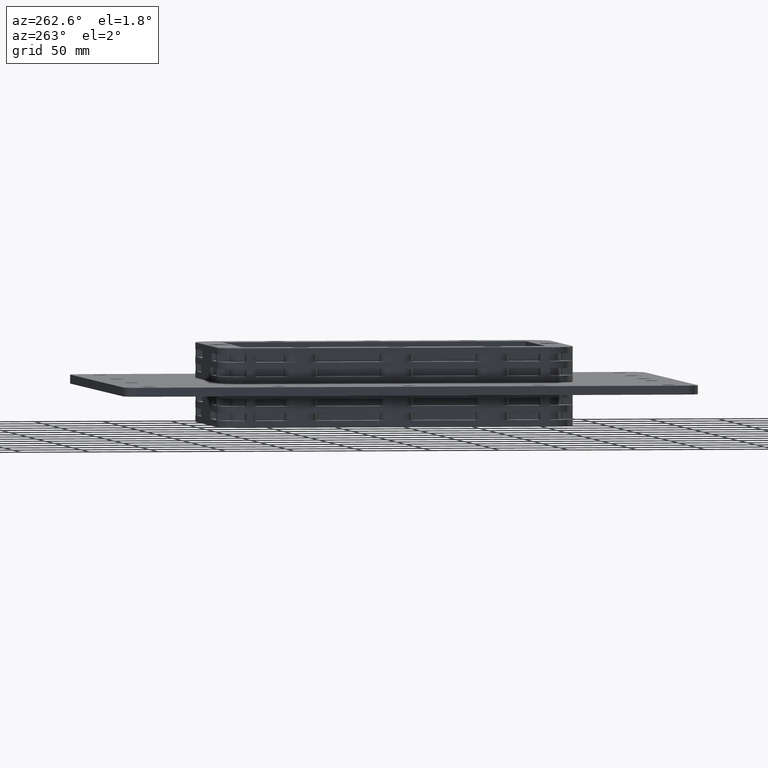
[diagram: clean part render]
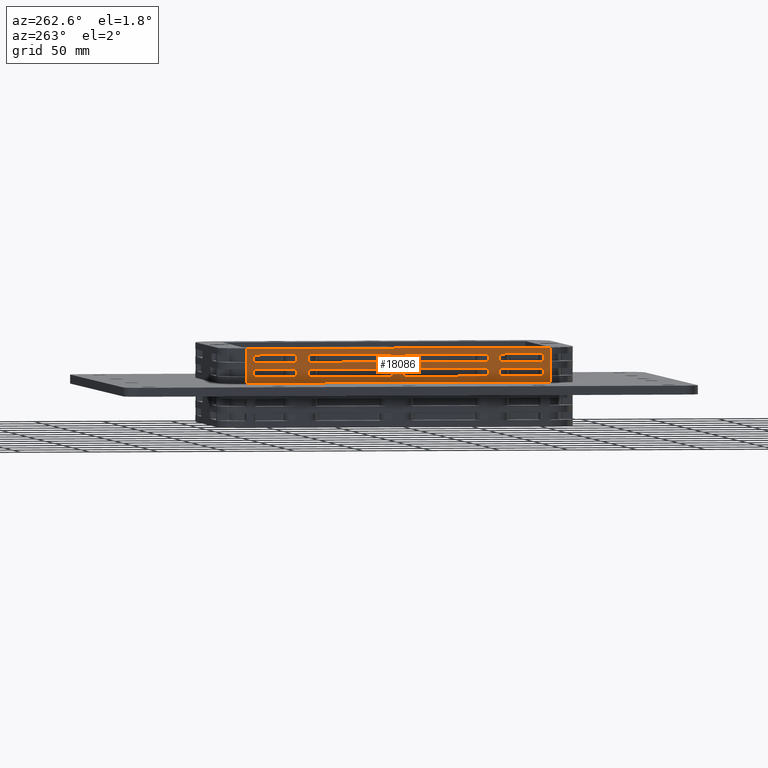
[diagram: same view with one face highlighted and labeled with its STEP entity id]
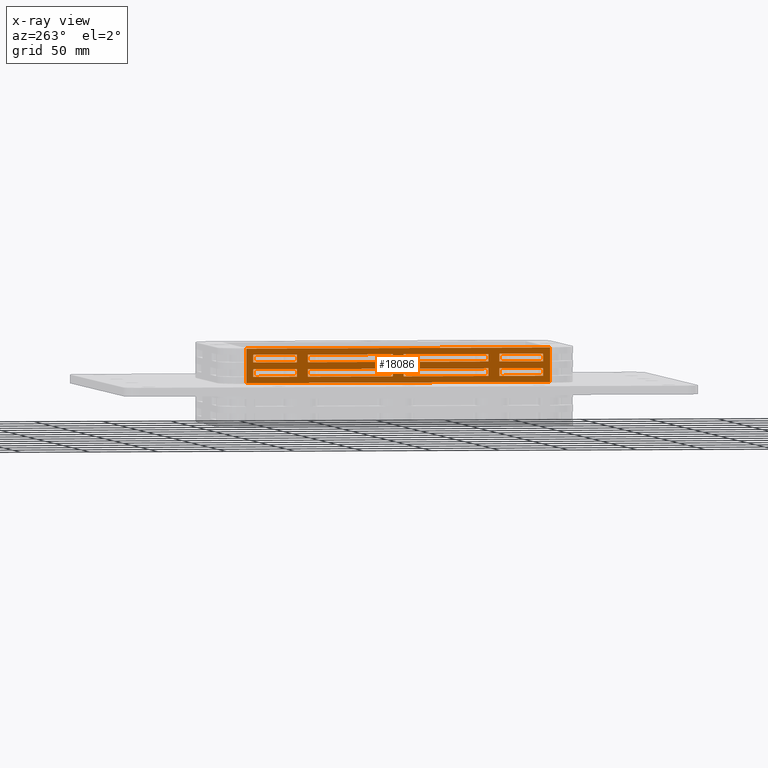
[diagram: x-ray of the same camera — body ghosted, the highlighted face saturated]
A machine part, auxiliary view. The second image highlights one B-rep face of the part: STEP entity #18086.
The next image is the same camera in x-ray: the body ghosted, the highlighted face saturated — about 0% of this face is hidden behind the body in this view.
In plain terms, the highlighted planar face has unit normal (-1, 0, 0).
Its self-contained STEP definition (entity closure, byte-faithful):
#98=CARTESIAN_POINT('',(189.310808067202600,279.936636017474310,2.395023394076706));
#99=VERTEX_POINT('',#98);
#107=CARTESIAN_POINT('',(189.310808067202600,279.936636017474310,7.395023394076707));
#108=VERTEX_POINT('',#107);
#109=CARTESIAN_POINT('',(189.310808067202600,279.936636017474310,2.395023394076706));
#110=DIRECTION('',(0.0,0.0,1.0));
#111=VECTOR('',#110,5.000000000000002);
#112=LINE('',#109,#111);
#113=EDGE_CURVE('',#99,#108,#112,.T.);
#350=CARTESIAN_POINT('',(189.310808067202600,279.936636017474310,12.895023394076706));
#351=VERTEX_POINT('',#350);
#359=CARTESIAN_POINT('',(189.310808067202600,279.936636017474310,17.395023394076709));
#360=VERTEX_POINT('',#359);
#361=CARTESIAN_POINT('',(189.310808067202600,279.936636017474310,12.895023394076706));
#362=DIRECTION('',(0.0,0.0,1.0));
#363=VECTOR('',#362,4.500000000000004);
#364=LINE('',#361,#363);
#365=EDGE_CURVE('',#351,#360,#364,.T.);
#3068=CARTESIAN_POINT('',(189.310808067202600,279.936636017474310,-7.604976605923297));
#3069=VERTEX_POINT('',#3068);
#3077=CARTESIAN_POINT('',(189.310808067202600,279.936636017474310,-3.104976605923293));
#3078=VERTEX_POINT('',#3077);
#3079=CARTESIAN_POINT('',(189.310808067202600,279.936636017474310,-7.604976605923297));
#3080=DIRECTION('',(0.0,0.0,1.0));
#3081=VECTOR('',#3080,4.500000000000004);
#3082=LINE('',#3079,#3081);
#3083=EDGE_CURVE('',#3069,#3078,#3082,.T.);
#16766=CARTESIAN_POINT('',(189.310808067202600,279.936636017474310,-3.104976605923293));
#16767=DIRECTION('',(0.0,0.0,1.0));
#16768=VECTOR('',#16767,5.499999999999998);
#16769=LINE('',#16766,#16768);
#16770=EDGE_CURVE('',#3078,#99,#16769,.T.);
#17053=CARTESIAN_POINT('',(189.310808067202600,57.936636017474292,7.395023394076707));
#17054=VERTEX_POINT('',#17053);
#17100=CARTESIAN_POINT('',(189.310808067202600,57.936636017474292,12.895023394076706));
#17101=VERTEX_POINT('',#17100);
#17108=CARTESIAN_POINT('',(189.310808067202600,57.936636017474292,12.895023394076706));
#17109=DIRECTION('',(0.0,0.0,-1.0));
#17110=VECTOR('',#17109,5.499999999999998);
#17111=LINE('',#17108,#17110);
#17112=EDGE_CURVE('',#17101,#17054,#17111,.T.);
#17158=CARTESIAN_POINT('',(189.310808067202600,57.936636017474292,-3.104976605923295));
#17159=VERTEX_POINT('',#17158);
#17205=CARTESIAN_POINT('',(189.310808067202600,57.936636017474292,2.395023394076706));
#17206=VERTEX_POINT('',#17205);
#17213=CARTESIAN_POINT('',(189.310808067202600,57.936636017474292,2.395023394076706));
#17214=DIRECTION('',(0.0,0.0,-1.0));
#17215=VECTOR('',#17214,5.500000000000000);
#17216=LINE('',#17213,#17215);
#17217=EDGE_CURVE('',#17206,#17159,#17216,.T.);
#17566=CARTESIAN_POINT('',(189.310808067202600,57.936636017474292,-7.604976605923297));
#17567=VERTEX_POINT('',#17566);
#17575=CARTESIAN_POINT('',(189.310808067202600,57.936636017474292,-7.604976605923297));
#17576=DIRECTION('',(0.0,1.0,0.0));
#17577=VECTOR('',#17576,222.000000000000030);
#17578=LINE('',#17575,#17577);
#17579=EDGE_CURVE('',#17567,#3069,#17578,.T.);
#17768=CARTESIAN_POINT('',(189.310808067202600,38.936636017474306,-8.104976605923294));
#17769=DIRECTION('',(-1.0,0.0,0.0));
#17770=DIRECTION('',(0.0,0.0,1.0));
#17771=AXIS2_PLACEMENT_3D('',#17768,#17769,#17770);
#17772=PLANE('',#17771);
#17773=ORIENTED_EDGE('',*,*,#17579,.F.);
#17774=CARTESIAN_POINT('',(189.310808067202600,57.936636017474292,-3.104976605923295));
#17775=DIRECTION('',(0.0,0.0,-1.0));
#17776=VECTOR('',#17775,4.500000000000002);
#17777=LINE('',#17774,#17776);
#17778=EDGE_CURVE('',#17159,#17567,#17777,.T.);
#17779=ORIENTED_EDGE('',*,*,#17778,.F.);
#17780=ORIENTED_EDGE('',*,*,#17217,.F.);
#17781=CARTESIAN_POINT('',(189.310808067202600,57.936636017474292,7.395023394076707));
#17782=DIRECTION('',(0.0,0.0,-1.0));
#17783=VECTOR('',#17782,5.000000000000002);
#17784=LINE('',#17781,#17783);
#17785=EDGE_CURVE('',#17054,#17206,#17784,.T.);
#17786=ORIENTED_EDGE('',*,*,#17785,.F.);
#17787=ORIENTED_EDGE('',*,*,#17112,.F.);
#17788=CARTESIAN_POINT('',(189.310808067202600,57.936636017474292,17.395023394076709));
#17789=VERTEX_POINT('',#17788);
#17790=CARTESIAN_POINT('',(189.310808067202600,57.936636017474292,17.395023394076709));
#17791=DIRECTION('',(0.0,0.0,-1.0));
#17792=VECTOR('',#17791,4.500000000000004);
#17793=LINE('',#17790,#17792);
#17794=EDGE_CURVE('',#17789,#17101,#17793,.T.);
#17795=ORIENTED_EDGE('',*,*,#17794,.F.);
#17796=CARTESIAN_POINT('',(189.310808067202600,279.936636017474310,17.395023394076709));
#17797=DIRECTION('',(0.0,-1.0,0.0));
#17798=VECTOR('',#17797,222.000000000000030);
#17799=LINE('',#17796,#17798);
#17800=EDGE_CURVE('',#360,#17789,#17799,.T.);
#17801=ORIENTED_EDGE('',*,*,#17800,.F.);
#17802=ORIENTED_EDGE('',*,*,#365,.F.);
#17803=CARTESIAN_POINT('',(189.310808067202600,279.936636017474310,7.395023394076707));
#17804=DIRECTION('',(0.0,0.0,1.0));
#17805=VECTOR('',#17804,5.499999999999998);
#17806=LINE('',#17803,#17805);
#17807=EDGE_CURVE('',#108,#351,#17806,.T.);
#17808=ORIENTED_EDGE('',*,*,#17807,.F.);
#17809=ORIENTED_EDGE('',*,*,#113,.F.);
#17810=ORIENTED_EDGE('',*,*,#16770,.F.);
#17811=ORIENTED_EDGE('',*,*,#3083,.F.);
#17812=EDGE_LOOP('',(#17773,#17779,#17780,#17786,#17787,#17795,#17801,#17802,#17808,#17809,#17810,#17811));
#17813=FACE_OUTER_BOUND('',#17812,.T.);
#17814=CARTESIAN_POINT('',(189.310808067202600,234.936636017474310,7.395023394076703));
#17815=VERTEX_POINT('',#17814);
#17816=CARTESIAN_POINT('',(189.310808067202600,172.936636017474290,7.395023394076703));
#17817=VERTEX_POINT('',#17816);
#17818=CARTESIAN_POINT('',(189.310808067202600,234.936636017474310,7.395023394076703));
#17819=DIRECTION('',(0.0,-1.0,0.0));
#17820=VECTOR('',#17819,62.000000000000028);
#17821=LINE('',#17818,#17820);
#17822=EDGE_CURVE('',#17815,#17817,#17821,.T.);
#17823=ORIENTED_EDGE('',*,*,#17822,.F.);
#17824=CARTESIAN_POINT('',(189.310808067202600,234.936636017474310,12.895023394076706));
#17825=VERTEX_POINT('',#17824);
#17826=CARTESIAN_POINT('',(189.310808067202600,234.936636017474310,12.895023394076706));
#17827=DIRECTION('',(0.0,0.0,-1.0));
#17828=VECTOR('',#17827,5.500000000000003);
#17829=LINE('',#17826,#17828);
#17830=EDGE_CURVE('',#17825,#17815,#17829,.T.);
#17831=ORIENTED_EDGE('',*,*,#17830,.F.);
#17832=CARTESIAN_POINT('',(189.310808067202600,172.936636017474290,12.895023394076714));
#17833=VERTEX_POINT('',#17832);
#17834=CARTESIAN_POINT('',(189.310808067202600,234.936636017474310,12.895023394076706));
#17835=DIRECTION('',(0.0,-1.0,0.0));
#17836=VECTOR('',#17835,62.000000000000028);
#17837=LINE('',#17834,#17836);
#17838=EDGE_CURVE('',#17825,#17833,#17837,.T.);
#17839=ORIENTED_EDGE('',*,*,#17838,.T.);
#17840=CARTESIAN_POINT('',(189.310808067202600,172.936636017474290,7.395023394076703));
#17841=DIRECTION('',(0.0,0.0,1.0));
#17842=VECTOR('',#17841,5.500000000000012);
#17843=LINE('',#17840,#17842);
#17844=EDGE_CURVE('',#17817,#17833,#17843,.T.);
#17845=ORIENTED_EDGE('',*,*,#17844,.F.);
#17846=EDGE_LOOP('',(#17823,#17831,#17839,#17845));
#17847=FACE_BOUND('',#17846,.T.);
#17848=CARTESIAN_POINT('',(189.310808067202600,234.936636017474310,-3.104976605923299));
#17849=VERTEX_POINT('',#17848);
#17850=CARTESIAN_POINT('',(189.310808067202600,172.936636017474290,-3.104976605923299));
#17851=VERTEX_POINT('',#17850);
#17852=CARTESIAN_POINT('',(189.310808067202600,234.936636017474310,-3.104976605923299));
#17853=DIRECTION('',(0.0,-1.0,0.0));
#17854=VECTOR('',#17853,62.000000000000028);
#17855=LINE('',#17852,#17854);
#17856=EDGE_CURVE('',#17849,#17851,#17855,.T.);
#17857=ORIENTED_EDGE('',*,*,#17856,.F.);
#17858=CARTESIAN_POINT('',(189.310808067202600,234.936636017474310,2.395023394076703));
#17859=VERTEX_POINT('',#17858);
#17860=CARTESIAN_POINT('',(189.310808067202600,234.936636017474310,2.395023394076703));
#17861=DIRECTION('',(0.0,0.0,-1.0));
#17862=VECTOR('',#17861,5.500000000000002);
#17863=LINE('',#17860,#17862);
#17864=EDGE_CURVE('',#17859,#17849,#17863,.T.);
#17865=ORIENTED_EDGE('',*,*,#17864,.F.);
#17866=CARTESIAN_POINT('',(189.310808067202600,172.936636017474290,2.395023394076711));
#17867=VERTEX_POINT('',#17866);
#17868=CARTESIAN_POINT('',(189.310808067202600,234.936636017474310,2.395023394076703));
#17869=DIRECTION('',(0.0,-1.0,0.0));
#17870=VECTOR('',#17869,62.000000000000028);
#17871=LINE('',#17868,#17870);
#17872=EDGE_CURVE('',#17859,#17867,#17871,.T.);
#17873=ORIENTED_EDGE('',*,*,#17872,.T.);
#17874=CARTESIAN_POINT('',(189.310808067202600,172.936636017474290,-3.104976605923299));
#17875=DIRECTION('',(0.0,0.0,1.0));
#17876=VECTOR('',#17875,5.500000000000011);
#17877=LINE('',#17874,#17876);
#17878=EDGE_CURVE('',#17851,#17867,#17877,.T.);
#17879=ORIENTED_EDGE('',*,*,#17878,.F.);
#17880=EDGE_LOOP('',(#17857,#17865,#17873,#17879));
#17881=FACE_BOUND('',#17880,.T.);
#17882=CARTESIAN_POINT('',(189.310808067202600,164.936636017474310,7.395023394076703));
#17883=VERTEX_POINT('',#17882);
#17884=CARTESIAN_POINT('',(189.310808067202600,102.936636017474290,7.395023394076703));
#17885=VERTEX_POINT('',#17884);
#17886=CARTESIAN_POINT('',(189.310808067202600,164.936636017474310,7.395023394076703));
#17887=DIRECTION('',(0.0,-1.0,0.0));
#17888=VECTOR('',#17887,62.000000000000028);
#17889=LINE('',#17886,#17888);
#17890=EDGE_CURVE('',#17883,#17885,#17889,.T.);
#17891=ORIENTED_EDGE('',*,*,#17890,.F.);
#17892=CARTESIAN_POINT('',(189.310808067202600,164.936636017474310,12.895023394076704));
#17893=VERTEX_POINT('',#17892);
#17894=CARTESIAN_POINT('',(189.310808067202600,164.936636017474310,12.895023394076704));
#17895=DIRECTION('',(0.0,0.0,-1.0));
#17896=VECTOR('',#17895,5.500000000000001);
#17897=LINE('',#17894,#17896);
#17898=EDGE_CURVE('',#17893,#17883,#17897,.T.);
#17899=ORIENTED_EDGE('',*,*,#17898,.F.);
#17900=CARTESIAN_POINT('',(189.310808067202600,102.936636017474290,12.895023394076709));
#17901=VERTEX_POINT('',#17900);
#17902=CARTESIAN_POINT('',(189.310808067202600,164.936636017474310,12.895023394076704));
#17903=DIRECTION('',(0.0,-1.0,0.0));
#17904=VECTOR('',#17903,62.000000000000028);
#17905=LINE('',#17902,#17904);
#17906=EDGE_CURVE('',#17893,#17901,#17905,.T.);
#17907=ORIENTED_EDGE('',*,*,#17906,.T.);
#17908=CARTESIAN_POINT('',(189.310808067202600,102.936636017474290,7.395023394076703));
#17909=DIRECTION('',(0.0,0.0,1.0));
#17910=VECTOR('',#17909,5.500000000000006);
#17911=LINE('',#17908,#17910);
#17912=EDGE_CURVE('',#17885,#17901,#17911,.T.);
#17913=ORIENTED_EDGE('',*,*,#17912,.F.);
#17914=EDGE_LOOP('',(#17891,#17899,#17907,#17913));
#17915=FACE_BOUND('',#17914,.T.);
#17916=CARTESIAN_POINT('',(189.310808067202600,164.936636017474310,-3.104976605923299));
#17917=VERTEX_POINT('',#17916);
#17918=CARTESIAN_POINT('',(189.310808067202600,102.936636017474290,-3.104976605923299));
#17919=VERTEX_POINT('',#17918);
#17920=CARTESIAN_POINT('',(189.310808067202600,164.936636017474310,-3.104976605923299));
#17921=DIRECTION('',(0.0,-1.0,0.0));
#17922=VECTOR('',#17921,62.000000000000028);
#17923=LINE('',#17920,#17922);
#17924=EDGE_CURVE('',#17917,#17919,#17923,.T.);
#17925=ORIENTED_EDGE('',*,*,#17924,.F.);
#17926=CARTESIAN_POINT('',(189.310808067202600,164.936636017474310,2.395023394076703));
#17927=VERTEX_POINT('',#17926);
#17928=CARTESIAN_POINT('',(189.310808067202600,164.936636017474310,2.395023394076703));
#17929=DIRECTION('',(0.0,0.0,-1.0));
#17930=VECTOR('',#17929,5.500000000000002);
#17931=LINE('',#17928,#17930);
#17932=EDGE_CURVE('',#17927,#17917,#17931,.T.);
#17933=ORIENTED_EDGE('',*,*,#17932,.F.);
#17934=CARTESIAN_POINT('',(189.310808067202600,102.936636017474290,2.395023394076709));
#17935=VERTEX_POINT('',#17934);
#17936=CARTESIAN_POINT('',(189.310808067202600,164.936636017474310,2.395023394076703));
#17937=DIRECTION('',(0.0,-1.0,0.0));
#17938=VECTOR('',#17937,62.000000000000028);
#17939=LINE('',#17936,#17938);
#17940=EDGE_CURVE('',#17927,#17935,#17939,.T.);
#17941=ORIENTED_EDGE('',*,*,#17940,.T.);
#17942=CARTESIAN_POINT('',(189.310808067202600,102.936636017474290,-3.104976605923299));
#17943=DIRECTION('',(0.0,0.0,1.0));
#17944=VECTOR('',#17943,5.500000000000009);
#17945=LINE('',#17942,#17944);
#17946=EDGE_CURVE('',#17919,#17935,#17945,.T.);
#17947=ORIENTED_EDGE('',*,*,#17946,.F.);
#17948=EDGE_LOOP('',(#17925,#17933,#17941,#17947));
#17949=FACE_BOUND('',#17948,.T.);
#17950=CARTESIAN_POINT('',(189.310808067202600,274.936636017474310,12.895023394076706));
#17951=VERTEX_POINT('',#17950);
#17952=CARTESIAN_POINT('',(189.310808067202600,242.936636017474310,12.895023394076709));
#17953=VERTEX_POINT('',#17952);
#17954=CARTESIAN_POINT('',(189.310808067202600,274.936636017474310,12.895023394076706));
#17955=DIRECTION('',(0.0,-1.0,0.0));
#17956=VECTOR('',#17955,32.0);
#17957=LINE('',#17954,#17956);
#17958=EDGE_CURVE('',#17951,#17953,#17957,.T.);
#17959=ORIENTED_EDGE('',*,*,#17958,.T.);
#17960=CARTESIAN_POINT('',(189.310808067202600,242.936636017474310,7.395023394076707));
#17961=VERTEX_POINT('',#17960);
#17962=CARTESIAN_POINT('',(189.310808067202600,242.936636017474310,7.395023394076707));
#17963=DIRECTION('',(0.0,0.0,1.0));
#17964=VECTOR('',#17963,5.500000000000002);
#17965=LINE('',#17962,#17964);
#17966=EDGE_CURVE('',#17961,#17953,#17965,.T.);
#17967=ORIENTED_EDGE('',*,*,#17966,.F.);
#17968=CARTESIAN_POINT('',(189.310808067202600,274.936636017474310,7.395023394076707));
#17969=VERTEX_POINT('',#17968);
#17970=CARTESIAN_POINT('',(189.310808067202600,274.936636017474310,7.395023394076707));
#17971=DIRECTION('',(0.0,-1.0,0.0));
#17972=VECTOR('',#17971,32.0);
#17973=LINE('',#17970,#17972);
#17974=EDGE_CURVE('',#17969,#17961,#17973,.T.);
#17975=ORIENTED_EDGE('',*,*,#17974,.F.);
#17976=CARTESIAN_POINT('',(189.310808067202600,274.936636017474310,12.895023394076706));
#17977=DIRECTION('',(0.0,0.0,-1.0));
#17978=VECTOR('',#17977,5.499999999999998);
#17979=LINE('',#17976,#17978);
#17980=EDGE_CURVE('',#17951,#17969,#17979,.T.);
#17981=ORIENTED_EDGE('',*,*,#17980,.F.);
#17982=EDGE_LOOP('',(#17959,#17967,#17975,#17981));
#17983=FACE_BOUND('',#17982,.T.);
#17984=CARTESIAN_POINT('',(189.310808067202600,274.936636017474310,2.395023394076704));
#17985=VERTEX_POINT('',#17984);
#17986=CARTESIAN_POINT('',(189.310808067202600,242.936636017474310,2.395023394076707));
#17987=VERTEX_POINT('',#17986);
#17988=CARTESIAN_POINT('',(189.310808067202600,274.936636017474310,2.395023394076704));
#17989=DIRECTION('',(0.0,-1.0,0.0));
#17990=VECTOR('',#17989,32.0);
#17991=LINE('',#17988,#17990);
#17992=EDGE_CURVE('',#17985,#17987,#17991,.T.);
#17993=ORIENTED_EDGE('',*,*,#17992,.T.);
#17994=CARTESIAN_POINT('',(189.310808067202600,242.936636017474310,-3.104976605923295));
#17995=VERTEX_POINT('',#17994);
#17996=CARTESIAN_POINT('',(189.310808067202600,242.936636017474310,-3.104976605923295));
#17997=DIRECTION('',(0.0,0.0,1.0));
#17998=VECTOR('',#17997,5.500000000000002);
#17999=LINE('',#17996,#17998);
#18000=EDGE_CURVE('',#17995,#17987,#17999,.T.);
#18001=ORIENTED_EDGE('',*,*,#18000,.F.);
#18002=CARTESIAN_POINT('',(189.310808067202600,274.936636017474310,-3.104976605923295));
#18003=VERTEX_POINT('',#18002);
#18004=CARTESIAN_POINT('',(189.310808067202600,274.936636017474310,-3.104976605923295));
#18005=DIRECTION('',(0.0,-1.0,0.0));
#18006=VECTOR('',#18005,32.0);
#18007=LINE('',#18004,#18006);
#18008=EDGE_CURVE('',#18003,#17995,#18007,.T.);
#18009=ORIENTED_EDGE('',*,*,#18008,.F.);
#18010=CARTESIAN_POINT('',(189.310808067202600,274.936636017474310,2.395023394076704));
#18011=DIRECTION('',(0.0,0.0,-1.0));
#18012=VECTOR('',#18011,5.499999999999998);
#18013=LINE('',#18010,#18012);
#18014=EDGE_CURVE('',#17985,#18003,#18013,.T.);
#18015=ORIENTED_EDGE('',*,*,#18014,.F.);
#18016=EDGE_LOOP('',(#17993,#18001,#18009,#18015));
#18017=FACE_BOUND('',#18016,.T.);
#18018=CARTESIAN_POINT('',(189.310808067202600,94.936636017474299,-3.104976605923295));
#18019=VERTEX_POINT('',#18018);
#18020=CARTESIAN_POINT('',(189.310808067202600,62.936636017474292,-3.104976605923295));
#18021=VERTEX_POINT('',#18020);
#18022=CARTESIAN_POINT('',(189.310808067202600,94.936636017474299,-3.104976605923295));
#18023=DIRECTION('',(0.0,-1.0,0.0));
#18024=VECTOR('',#18023,32.000000000000007);
#18025=LINE('',#18022,#18024);
#18026=EDGE_CURVE('',#18019,#18021,#18025,.T.);
#18027=ORIENTED_EDGE('',*,*,#18026,.F.);
#18028=CARTESIAN_POINT('',(189.310808067202600,94.936636017474299,2.395023394076703));
#18029=VERTEX_POINT('',#18028);
#18030=CARTESIAN_POINT('',(189.310808067202600,94.936636017474299,2.395023394076703));
#18031=DIRECTION('',(0.0,0.0,-1.0));
#18032=VECTOR('',#18031,5.499999999999997);
#18033=LINE('',#18030,#18032);
#18034=EDGE_CURVE('',#18029,#18019,#18033,.T.);
#18035=ORIENTED_EDGE('',*,*,#18034,.F.);
#18036=CARTESIAN_POINT('',(189.310808067202600,62.936636017474292,2.395023394076706));
#18037=VERTEX_POINT('',#18036);
#18038=CARTESIAN_POINT('',(189.310808067202600,94.936636017474299,2.395023394076703));
#18039=DIRECTION('',(0.0,-1.0,0.0));
#18040=VECTOR('',#18039,32.000000000000007);
#18041=LINE('',#18038,#18040);
#18042=EDGE_CURVE('',#18029,#18037,#18041,.T.);
#18043=ORIENTED_EDGE('',*,*,#18042,.T.);
#18044=CARTESIAN_POINT('',(189.310808067202600,62.936636017474292,-3.104976605923295));
#18045=DIRECTION('',(0.0,0.0,1.0));
#18046=VECTOR('',#18045,5.500000000000000);
#18047=LINE('',#18044,#18046);
#18048=EDGE_CURVE('',#18021,#18037,#18047,.T.);
#18049=ORIENTED_EDGE('',*,*,#18048,.F.);
#18050=EDGE_LOOP('',(#18027,#18035,#18043,#18049));
#18051=FACE_BOUND('',#18050,.T.);
#18052=CARTESIAN_POINT('',(189.310808067202600,94.936636017474299,7.395023394076707));
#18053=VERTEX_POINT('',#18052);
#18054=CARTESIAN_POINT('',(189.310808067202600,62.936636017474292,7.395023394076707));
#18055=VERTEX_POINT('',#18054);
#18056=CARTESIAN_POINT('',(189.310808067202600,94.936636017474299,7.395023394076707));
#18057=DIRECTION('',(0.0,-1.0,0.0));
#18058=VECTOR('',#18057,32.000000000000007);
#18059=LINE('',#18056,#18058);
#18060=EDGE_CURVE('',#18053,#18055,#18059,.T.);
#18061=ORIENTED_EDGE('',*,*,#18060,.F.);
#18062=CARTESIAN_POINT('',(189.310808067202600,94.936636017474299,12.895023394076704));
#18063=VERTEX_POINT('',#18062);
#18064=CARTESIAN_POINT('',(189.310808067202600,94.936636017474299,12.895023394076704));
#18065=DIRECTION('',(0.0,0.0,-1.0));
#18066=VECTOR('',#18065,5.499999999999996);
#18067=LINE('',#18064,#18066);
#18068=EDGE_CURVE('',#18063,#18053,#18067,.T.);
#18069=ORIENTED_EDGE('',*,*,#18068,.F.);
#18070=CARTESIAN_POINT('',(189.310808067202600,62.936636017474292,12.895023394076706));
#18071=VERTEX_POINT('',#18070);
#18072=CARTESIAN_POINT('',(189.310808067202600,94.936636017474299,12.895023394076704));
#18073=DIRECTION('',(0.0,-1.0,0.0));
#18074=VECTOR('',#18073,32.000000000000007);
#18075=LINE('',#18072,#18074);
#18076=EDGE_CURVE('',#18063,#18071,#18075,.T.);
#18077=ORIENTED_EDGE('',*,*,#18076,.T.);
#18078=CARTESIAN_POINT('',(189.310808067202600,62.936636017474292,7.395023394076707));
#18079=DIRECTION('',(0.0,0.0,1.0));
#18080=VECTOR('',#18079,5.499999999999998);
#18081=LINE('',#18078,#18080);
#18082=EDGE_CURVE('',#18055,#18071,#18081,.T.);
#18083=ORIENTED_EDGE('',*,*,#18082,.F.);
#18084=EDGE_LOOP('',(#18061,#18069,#18077,#18083));
#18085=FACE_BOUND('',#18084,.T.);
#18086=ADVANCED_FACE('',(#17813,#17847,#17881,#17915,#17949,#17983,#18017,#18051,#18085),#17772,.T.);